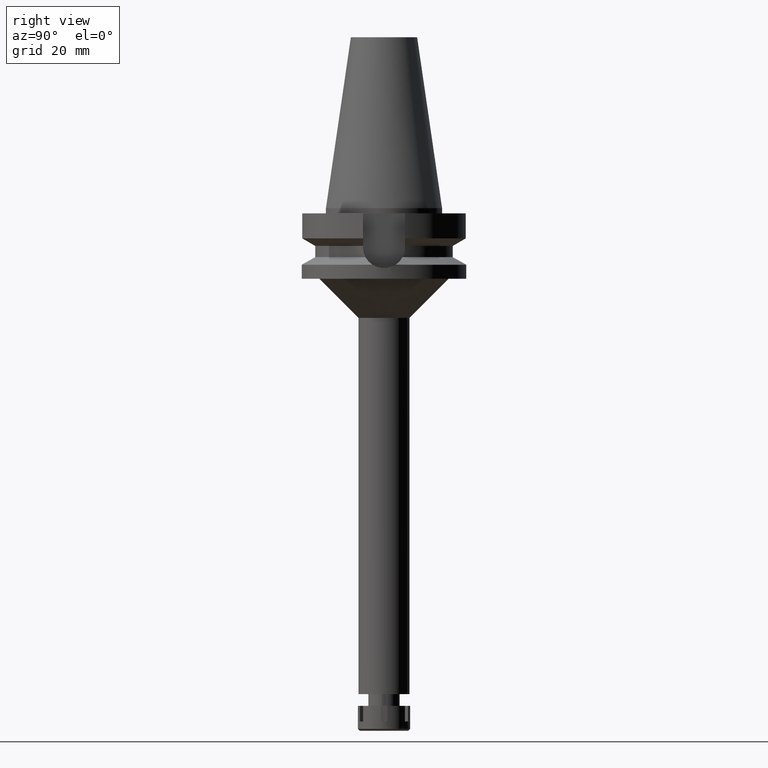
[diagram: clean part render]
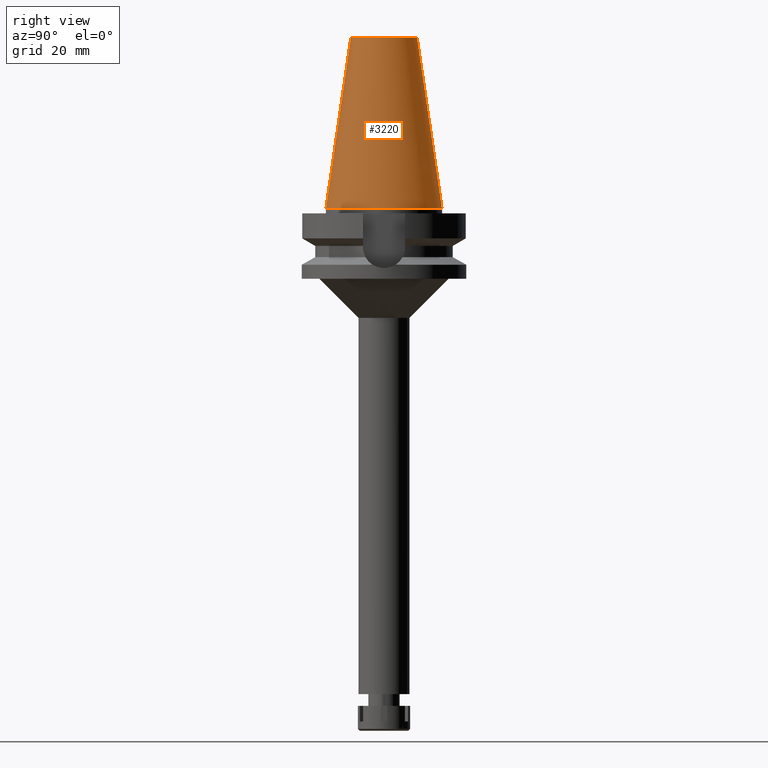
[diagram: same view with one face highlighted and labeled with its STEP entity id]
A machine part, right view. The second image highlights one B-rep face of the part: STEP entity #3220.
In plain terms, the highlighted conical surface has half-angle 8.297 deg.
Its self-contained STEP definition (entity closure, byte-faithful):
#42 = AXIS2_PLACEMENT_3D ( 'NONE', #2820, #1469, #2532 ) ;
#52 = FACE_OUTER_BOUND ( 'NONE', #2686, .T. ) ;
#90 = CONICAL_SURFACE ( 'NONE', #3557, 17.45633449714999941, 0.1448099680379422438 ) ;
#265 = DIRECTION ( 'NONE',  ( 0.0000000000000000000, -0.1443043893539925626, -0.9895333461855498891 ) ) ;
#284 = CARTESIAN_POINT ( 'NONE',  ( 0.0000000000000000000, -12.68766899429999917, 65.40000000000000568 ) ) ;
#333 = CARTESIAN_POINT ( 'NONE',  ( 0.0000000000000000000, -22.22500000000000142, 1.136868377215999875E-13 ) ) ;
#556 = CARTESIAN_POINT ( 'NONE',  ( 0.0000000000000000000, 1.625106302469000024E-14, 32.70000000000000284 ) ) ;
#693 = CARTESIAN_POINT ( 'NONE',  ( 0.0000000000000000000, -12.68766899429999917, 65.40000000000000568 ) ) ;
#958 = CARTESIAN_POINT ( 'NONE',  ( 0.0000000000000000000, 12.68766899429999917, 65.40000000000000568 ) ) ;
#1178 = DIRECTION ( 'NONE',  ( 0.0000000000000000000, -1.000000000000000000, 0.0000000000000000000 ) ) ;
#1219 = VECTOR ( 'NONE', #265, 1000.000000000000114 ) ;
#1329 = VERTEX_POINT ( 'NONE', #693 ) ;
#1330 = LINE ( 'NONE', #284, #1219 ) ;
#1469 = DIRECTION ( 'NONE',  ( 0.0000000000000000000, 0.0000000000000000000, -1.000000000000000000 ) ) ;
#1501 = EDGE_CURVE ( 'NONE', #1329, #2946, #1330, .T. ) ;
#1516 = EDGE_CURVE ( 'NONE', #1722, #3536, #2499, .T. ) ;
#1541 = EDGE_CURVE ( 'NONE', #3536, #2946, #2631, .T. ) ;
#1578 = AXIS2_PLACEMENT_3D ( 'NONE', #2841, #3401, #3384 ) ;
#1595 = CARTESIAN_POINT ( 'NONE',  ( 0.0000000000000000000, 22.22500000000000142, 8.526512829120999020E-14 ) ) ;
#1701 = ORIENTED_EDGE ( 'NONE', *, *, #1516, .F. ) ;
#1722 = VERTEX_POINT ( 'NONE', #958 ) ;
#2159 = CIRCLE ( 'NONE', #42, 12.68766899429999917 ) ;
#2321 = EDGE_CURVE ( 'NONE', #1722, #1329, #2159, .T. ) ;
#2451 = VECTOR ( 'NONE', #3625, 1000.000000000000114 ) ;
#2499 = LINE ( 'NONE', #3571, #2451 ) ;
#2504 = DIRECTION ( 'NONE',  ( 0.0000000000000000000, 0.0000000000000000000, -1.000000000000000000 ) ) ;
#2509 = ORIENTED_EDGE ( 'NONE', *, *, #1501, .T. ) ;
#2532 = DIRECTION ( 'NONE',  ( 0.0000000000000000000, 1.000000000000000000, 0.0000000000000000000 ) ) ;
#2631 = CIRCLE ( 'NONE', #1578, 22.22500000000000142 ) ;
#2686 = EDGE_LOOP ( 'NONE', ( #3272, #2509, #2917, #1701 ) ) ;
#2820 = CARTESIAN_POINT ( 'NONE',  ( 0.0000000000000000000, 1.625106302469000024E-14, 65.40000000000000568 ) ) ;
#2841 = CARTESIAN_POINT ( 'NONE',  ( 0.0000000000000000000, 1.625106302469000024E-14, 1.136868377215999875E-13 ) ) ;
#2917 = ORIENTED_EDGE ( 'NONE', *, *, #1541, .F. ) ;
#2946 = VERTEX_POINT ( 'NONE', #333 ) ;
#3220 = ADVANCED_FACE ( 'NONE', ( #52 ), #90, .T. ) ;
#3272 = ORIENTED_EDGE ( 'NONE', *, *, #2321, .T. ) ;
#3384 = DIRECTION ( 'NONE',  ( 0.0000000000000000000, 1.000000000000000000, 0.0000000000000000000 ) ) ;
#3401 = DIRECTION ( 'NONE',  ( 0.0000000000000000000, 0.0000000000000000000, -1.000000000000000000 ) ) ;
#3536 = VERTEX_POINT ( 'NONE', #1595 ) ;
#3557 = AXIS2_PLACEMENT_3D ( 'NONE', #556, #2504, #1178 ) ;
#3571 = CARTESIAN_POINT ( 'NONE',  ( 0.0000000000000000000, 12.68766899429999917, 65.40000000000000568 ) ) ;
#3625 = DIRECTION ( 'NONE',  ( 0.0000000000000000000, 0.1443043893539925626, -0.9895333461855498891 ) ) ;